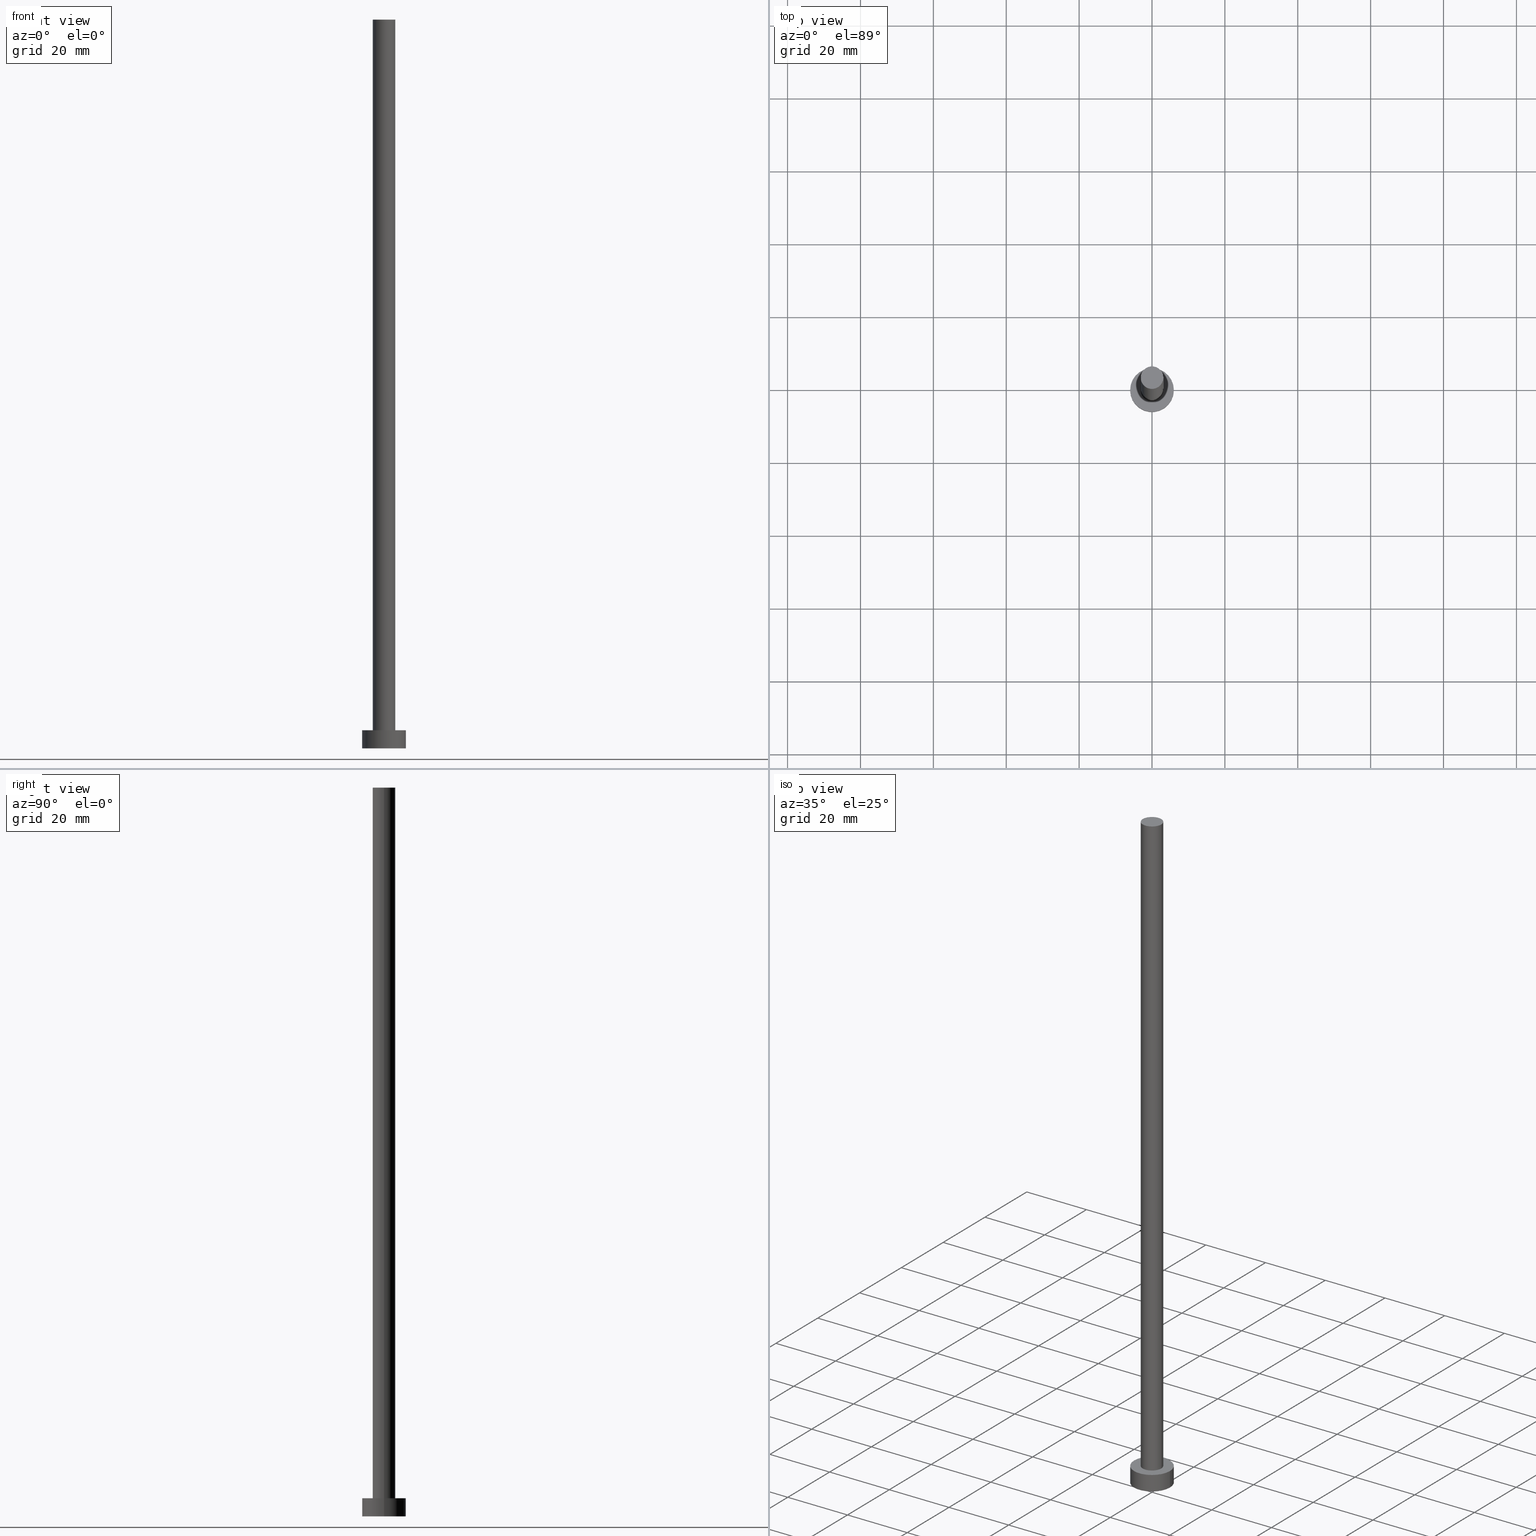
[diagram: canonical four-view strip — front | top / right | iso, engineering-drawing reading convention]
A machine part, canonical four-view strip (front | top / right | iso — engineering-drawing reading convention). The complete STEP part file that produces these views, byte-faithful:
ISO-10303-21;
HEADER;
FILE_DESCRIPTION (( 'STEP AP203' ),
    '1' );
FILE_NAME ('3ea4.STEP',
    '2023-02-13T14:05:38',
    ( '' ),
    ( '' ),
    'SwSTEP 2.0',
    'SolidWorks 2019',
    '' );
FILE_SCHEMA (( 'CONFIG_CONTROL_DESIGN' ));
ENDSEC;

DATA;
#1 = ORIENTED_EDGE ( 'NONE', *, *, #91, .F. ) ;
#2 = EDGE_CURVE ( 'NONE', #82, #164, #57, .T. ) ;
#3 = DIRECTION ( 'NONE',  ( 0.000000000000000000, 0.000000000000000000, 1.000000000000000000 ) ) ;
#4 = DATE_AND_TIME ( #218, #165 ) ;
#5 = EDGE_LOOP ( 'NONE', ( #116, #53, #162, #35 ) ) ;
#6 = VERTEX_POINT ( 'NONE', #38 ) ;
#7 = CC_DESIGN_SECURITY_CLASSIFICATION ( #244, ( #237 ) ) ;
#8 = LINE ( 'NONE', #249, #87 ) ;
#9 = FACE_BOUND ( 'NONE', #75, .T. ) ;
#10 = CARTESIAN_POINT ( 'NONE',  ( 6.000000000000000888, 7.347880794884120722E-16, 5.000000000000000000 ) ) ;
#11 = CC_DESIGN_DATE_AND_TIME_ASSIGNMENT ( #220, #141, ( #195 ) ) ;
#12 = DIRECTION ( 'NONE',  ( 1.000000000000000000, 0.000000000000000000, 0.000000000000000000 ) ) ;
#13 = CIRCLE ( 'NONE', #221, 3.100000000000000089 ) ;
#14 =( NAMED_UNIT ( * ) SI_UNIT ( $, .STERADIAN. ) SOLID_ANGLE_UNIT ( ) );
#15 = UNCERTAINTY_MEASURE_WITH_UNIT (LENGTH_MEASURE( 1.000000000000000082E-05 ), #44, 'distance_accuracy_value', 'NONE');
#16 = EDGE_CURVE ( 'NONE', #40, #217, #168, .T. ) ;
#17 = DIRECTION ( 'NONE',  ( -0.000000000000000000, -0.000000000000000000, -1.000000000000000000 ) ) ;
#18 = FACE_OUTER_BOUND ( 'NONE', #159, .T. ) ;
#19 = DATE_AND_TIME ( #126, #106 ) ;
#20 =( GEOMETRIC_REPRESENTATION_CONTEXT ( 3 ) GLOBAL_UNCERTAINTY_ASSIGNED_CONTEXT ( ( #15 ) ) GLOBAL_UNIT_ASSIGNED_CONTEXT ( ( #44, #130, #14 ) ) REPRESENTATION_CONTEXT ( 'NONE', 'WORKASPACE' ) );
#21 = ORIENTED_EDGE ( 'NONE', *, *, #33, .F. ) ;
#22 = ADVANCED_FACE ( 'NONE', ( #197 ), #124, .T. ) ;
#23 = ORIENTED_EDGE ( 'NONE', *, *, #109, .F. ) ;
#24 = CARTESIAN_POINT ( 'NONE',  ( 0.000000000000000000, 0.000000000000000000, 5.000000000000000000 ) ) ;
#25 = ADVANCED_FACE ( 'NONE', ( #97 ), #199, .T. ) ;
#26 = DIRECTION ( 'NONE',  ( 1.000000000000000000, 0.000000000000000000, -0.000000000000000000 ) ) ;
#27 = ADVANCED_FACE ( 'NONE', ( #18 ), #99, .F. ) ;
#28 = DIRECTION ( 'NONE',  ( -1.000000000000000000, 0.000000000000000000, 0.000000000000000000 ) ) ;
#29 = FACE_OUTER_BOUND ( 'NONE', #37, .T. ) ;
#30 = DIRECTION ( 'NONE',  ( -0.000000000000000000, -0.000000000000000000, -1.000000000000000000 ) ) ;
#31 = CC_DESIGN_PERSON_AND_ORGANIZATION_ASSIGNMENT ( #206, #100, ( #237 ) ) ;
#32 = CARTESIAN_POINT ( 'NONE',  ( 0.000000000000000000, 0.000000000000000000, 0.000000000000000000 ) ) ;
#33 = EDGE_CURVE ( 'NONE', #240, #6, #253, .T. ) ;
#34 = MECHANICAL_CONTEXT ( 'NONE', #60, 'mechanical' ) ;
#35 = ORIENTED_EDGE ( 'NONE', *, *, #2, .F. ) ;
#36 = CC_DESIGN_PERSON_AND_ORGANIZATION_ASSIGNMENT ( #213, #243, ( #195 ) ) ;
#37 = EDGE_LOOP ( 'NONE', ( #42, #222 ) ) ;
#38 = CARTESIAN_POINT ( 'NONE',  ( 6.000000000000000888, 7.347880794884120722E-16, 5.000000000000000000 ) ) ;
#39 = PERSON_AND_ORGANIZATION_ROLE ( 'classification_officer' ) ;
#40 = VERTEX_POINT ( 'NONE', #187 ) ;
#41 = PRODUCT_RELATED_PRODUCT_CATEGORY ( 'detail', '', ( #50 ) ) ;
#42 = ORIENTED_EDGE ( 'NONE', *, *, #33, .T. ) ;
#43 = APPROVAL_DATE_TIME ( #58, #72 ) ;
#44 =( LENGTH_UNIT ( ) NAMED_UNIT ( * ) SI_UNIT ( .MILLI., .METRE. ) );
#45 = CYLINDRICAL_SURFACE ( 'NONE', #158, 3.100000000000000089 ) ;
#46 = DIRECTION ( 'NONE',  ( 1.000000000000000000, 0.000000000000000000, 0.000000000000000000 ) ) ;
#47 = CIRCLE ( 'NONE', #80, 6.000000000000000888 ) ;
#48 = DIRECTION ( 'NONE',  ( 0.000000000000000000, 0.000000000000000000, 1.000000000000000000 ) ) ;
#49 = DIRECTION ( 'NONE',  ( 1.000000000000000000, 0.000000000000000000, -0.000000000000000000 ) ) ;
#50 = PRODUCT ( '3ea4', '3ea4', '', ( #34 ) ) ;
#51 = LOCAL_TIME ( 15, 5, 38.00000000000000000, #174 ) ;
#52 = APPROVAL_STATUS ( 'not_yet_approved' ) ;
#53 = ORIENTED_EDGE ( 'NONE', *, *, #254, .T. ) ;
#54 = COORDINATED_UNIVERSAL_TIME_OFFSET ( 1, 0, .AHEAD. ) ;
#55 = APPROVAL_DATE_TIME ( #183, #190 ) ;
#56 = AXIS2_PLACEMENT_3D ( 'NONE', #184, #3, #78 ) ;
#57 = LINE ( 'NONE', #118, #175 ) ;
#58 = DATE_AND_TIME ( #84, #233 ) ;
#59 = ORIENTED_EDGE ( 'NONE', *, *, #194, .T. ) ;
#60 = APPLICATION_CONTEXT ( 'configuration controlled 3d designs of mechanical parts and assemblies' ) ;
#61 = ORIENTED_EDGE ( 'NONE', *, *, #205, .F. ) ;
#62 = CARTESIAN_POINT ( 'NONE',  ( 0.000000000000000000, 0.000000000000000000, 200.0000000000000000 ) ) ;
#63 = AXIS2_PLACEMENT_3D ( 'NONE', #251, #127, #248 ) ;
#64 = PERSON_AND_ORGANIZATION ( #93, #250 ) ;
#65 = CC_DESIGN_PERSON_AND_ORGANIZATION_ASSIGNMENT ( #64, #39, ( #244 ) ) ;
#66 = CARTESIAN_POINT ( 'NONE',  ( 0.000000000000000000, 0.000000000000000000, 200.0000000000000000 ) ) ;
#67 = DIRECTION ( 'NONE',  ( -1.000000000000000000, 0.000000000000000000, 0.000000000000000000 ) ) ;
#68 = CARTESIAN_POINT ( 'NONE',  ( 0.000000000000000000, 0.000000000000000000, 0.000000000000000000 ) ) ;
#69 = LOCAL_TIME ( 15, 5, 38.00000000000000000, #223 ) ;
#70 = ADVANCED_FACE ( 'NONE', ( #152 ), #103, .T. ) ;
#71 = AXIS2_PLACEMENT_3D ( 'NONE', #66, #125, #151 ) ;
#72 = APPROVAL ( #138, 'NEUR�EN�' ) ;
#73 = CLOSED_SHELL ( 'NONE', ( #170, #25, #70, #133, #27, #149, #22 ) ) ;
#74 = EDGE_LOOP ( 'NONE', ( #61, #21, #255, #224 ) ) ;
#75 = EDGE_LOOP ( 'NONE', ( #137, #1 ) ) ;
#76 = APPROVAL_STATUS ( 'not_yet_approved' ) ;
#77 = APPROVAL_PERSON_ORGANIZATION ( #144, #72, #200 ) ;
#78 = DIRECTION ( 'NONE',  ( 1.000000000000000000, 0.000000000000000000, -0.000000000000000000 ) ) ;
#79 = APPROVAL_DATE_TIME ( #4, #155 ) ;
#80 = AXIS2_PLACEMENT_3D ( 'NONE', #211, #83, #12 ) ;
#81 = EDGE_LOOP ( 'NONE', ( #119, #163, #161, #23 ) ) ;
#82 = VERTEX_POINT ( 'NONE', #246 ) ;
#83 = DIRECTION ( 'NONE',  ( 0.000000000000000000, 0.000000000000000000, 1.000000000000000000 ) ) ;
#84 = CALENDAR_DATE ( 2023, 13, 2 ) ;
#85 = CC_DESIGN_PERSON_AND_ORGANIZATION_ASSIGNMENT ( #115, #236, ( #50 ) ) ;
#86 = PLANE ( 'NONE',  #153 ) ;
#87 = VECTOR ( 'NONE', #228, 1000.000000000000000 ) ;
#88 = CYLINDRICAL_SURFACE ( 'NONE', #121, 3.100000000000000089 ) ;
#89 = AXIS2_PLACEMENT_3D ( 'NONE', #32, #232, #231 ) ;
#90 = DIRECTION ( 'NONE',  ( -0.000000000000000000, -0.000000000000000000, -1.000000000000000000 ) ) ;
#91 = EDGE_CURVE ( 'NONE', #216, #164, #145, .T. ) ;
#92 = LINE ( 'NONE', #226, #95 ) ;
#93 = PERSON ( 'NEUR�EN�', 'NEUR�EN�', 'NEUR�EN�', ('NEUR�EN�'), ('NEUR�EN�'), ('NEUR�EN�') ) ;
#94 = EDGE_CURVE ( 'NONE', #101, #82, #131, .T. ) ;
#95 = VECTOR ( 'NONE', #128, 1000.000000000000000 ) ;
#96 = EDGE_LOOP ( 'NONE', ( #186, #202, #143, #59 ) ) ;
#97 = FACE_OUTER_BOUND ( 'NONE', #81, .T. ) ;
#98 = CALENDAR_DATE ( 2023, 13, 2 ) ;
#99 = PLANE ( 'NONE',  #56 ) ;
#100 = PERSON_AND_ORGANIZATION_ROLE ( 'creator' ) ;
#101 = VERTEX_POINT ( 'NONE', #129 ) ;
#102 = DIRECTION ( 'NONE',  ( 1.000000000000000000, 0.000000000000000000, 0.000000000000000000 ) ) ;
#103 = CYLINDRICAL_SURFACE ( 'NONE', #210, 6.000000000000000888 ) ;
#104 = CC_DESIGN_PERSON_AND_ORGANIZATION_ASSIGNMENT ( #188, #167, ( #237 ) ) ;
#105 = CALENDAR_DATE ( 2023, 13, 2 ) ;
#106 = LOCAL_TIME ( 15, 5, 38.00000000000000000, #147 ) ;
#107 = DIRECTION ( 'NONE',  ( 0.000000000000000000, 0.000000000000000000, 1.000000000000000000 ) ) ;
#108 = DIRECTION ( 'NONE',  ( 0.000000000000000000, 0.000000000000000000, 1.000000000000000000 ) ) ;
#109 = EDGE_CURVE ( 'NONE', #240, #40, #8, .T. ) ;
#110 = CARTESIAN_POINT ( 'NONE',  ( -6.000000000000000888, 0.000000000000000000, 5.000000000000000000 ) ) ;
#111 = VECTOR ( 'NONE', #113, 1000.000000000000000 ) ;
#112 = APPROVAL_PERSON_ORGANIZATION ( #214, #190, #136 ) ;
#113 = DIRECTION ( 'NONE',  ( -0.000000000000000000, -0.000000000000000000, -1.000000000000000000 ) ) ;
#114 = AXIS2_PLACEMENT_3D ( 'NONE', #204, #235, #49 ) ;
#115 = PERSON_AND_ORGANIZATION ( #93, #250 ) ;
#116 = ORIENTED_EDGE ( 'NONE', *, *, #94, .F. ) ;
#117 = APPLICATION_PROTOCOL_DEFINITION ( 'international standard', 'config_control_design', 1994, #60 ) ;
#118 = CARTESIAN_POINT ( 'NONE',  ( -3.100000000000000089, 0.000000000000000000, 200.0000000000000000 ) ) ;
#119 = ORIENTED_EDGE ( 'NONE', *, *, #123, .F. ) ;
#120 = SHAPE_DEFINITION_REPRESENTATION ( #215, #203 ) ;
#121 = AXIS2_PLACEMENT_3D ( 'NONE', #169, #30, #173 ) ;
#122 = ORIENTED_EDGE ( 'NONE', *, *, #160, .T. ) ;
#123 = EDGE_CURVE ( 'NONE', #6, #240, #47, .T. ) ;
#124 = PLANE ( 'NONE',  #114 ) ;
#125 = DIRECTION ( 'NONE',  ( 0.000000000000000000, 0.000000000000000000, 1.000000000000000000 ) ) ;
#126 = CALENDAR_DATE ( 2023, 13, 2 ) ;
#127 = DIRECTION ( 'NONE',  ( 0.000000000000000000, 0.000000000000000000, 1.000000000000000000 ) ) ;
#128 = DIRECTION ( 'NONE',  ( -0.000000000000000000, -0.000000000000000000, -1.000000000000000000 ) ) ;
#129 = CARTESIAN_POINT ( 'NONE',  ( 3.100000000000000089, 3.796405077356794918E-16, 200.0000000000000000 ) ) ;
#130 =( NAMED_UNIT ( * ) PLANE_ANGLE_UNIT ( ) SI_UNIT ( $, .RADIAN. ) );
#131 = CIRCLE ( 'NONE', #63, 3.100000000000000089 ) ;
#132 = APPLICATION_CONTEXT ( 'configuration controlled 3d designs of mechanical parts and assemblies' ) ;
#133 = ADVANCED_FACE ( 'NONE', ( #9, #29 ), #86, .T. ) ;
#134 = CARTESIAN_POINT ( 'NONE',  ( 0.000000000000000000, 0.000000000000000000, 5.000000000000000000 ) ) ;
#135 = CC_DESIGN_APPROVAL ( #72, ( #237 ) ) ;
#136 = APPROVAL_ROLE ( '' ) ;
#137 = ORIENTED_EDGE ( 'NONE', *, *, #194, .F. ) ;
#138 = APPROVAL_STATUS ( 'not_yet_approved' ) ;
#139 = AXIS2_PLACEMENT_3D ( 'NONE', #154, #48, #191 ) ;
#140 = ORIENTED_EDGE ( 'NONE', *, *, #234, .F. ) ;
#141 = DATE_TIME_ROLE ( 'creation_date' ) ;
#142 = AXIS2_PLACEMENT_3D ( 'NONE', #68, #166, #46 ) ;
#143 = ORIENTED_EDGE ( 'NONE', *, *, #2, .T. ) ;
#144 = PERSON_AND_ORGANIZATION ( #93, #250 ) ;
#145 = CIRCLE ( 'NONE', #180, 3.100000000000000089 ) ;
#146 = FACE_OUTER_BOUND ( 'NONE', #96, .T. ) ;
#147 = COORDINATED_UNIVERSAL_TIME_OFFSET ( 1, 0, .AHEAD. ) ;
#148 = CARTESIAN_POINT ( 'NONE',  ( 0.000000000000000000, 0.000000000000000000, 5.000000000000000000 ) ) ;
#149 = ADVANCED_FACE ( 'NONE', ( #146 ), #88, .T. ) ;
#150 = CC_DESIGN_APPROVAL ( #155, ( #244 ) ) ;
#151 = DIRECTION ( 'NONE',  ( 1.000000000000000000, 0.000000000000000000, 0.000000000000000000 ) ) ;
#152 = FACE_OUTER_BOUND ( 'NONE', #74, .T. ) ;
#153 = AXIS2_PLACEMENT_3D ( 'NONE', #148, #227, #26 ) ;
#154 = CARTESIAN_POINT ( 'NONE',  ( 0.000000000000000000, 0.000000000000000000, 5.000000000000000000 ) ) ;
#155 = APPROVAL ( #76, 'NEUR�EN�' ) ;
#156 = APPROVAL_PERSON_ORGANIZATION ( #185, #155, #239 ) ;
#157 = MANIFOLD_SOLID_BREP ( 'P�idat vysunut�m3', #73 ) ;
#158 = AXIS2_PLACEMENT_3D ( 'NONE', #62, #209, #28 ) ;
#159 = EDGE_LOOP ( 'NONE', ( #238, #140 ) ) ;
#160 = EDGE_CURVE ( 'NONE', #82, #101, #177, .T. ) ;
#161 = ORIENTED_EDGE ( 'NONE', *, *, #234, .T. ) ;
#162 = ORIENTED_EDGE ( 'NONE', *, *, #91, .T. ) ;
#163 = ORIENTED_EDGE ( 'NONE', *, *, #205, .T. ) ;
#164 = VERTEX_POINT ( 'NONE', #193 ) ;
#165 = LOCAL_TIME ( 15, 5, 38.00000000000000000, #54 ) ;
#166 = DIRECTION ( 'NONE',  ( 0.000000000000000000, 0.000000000000000000, 1.000000000000000000 ) ) ;
#167 = PERSON_AND_ORGANIZATION_ROLE ( 'design_supplier' ) ;
#168 = CIRCLE ( 'NONE', #225, 6.000000000000000888 ) ;
#169 = CARTESIAN_POINT ( 'NONE',  ( 0.000000000000000000, 0.000000000000000000, 200.0000000000000000 ) ) ;
#170 = ADVANCED_FACE ( 'NONE', ( #230 ), #45, .T. ) ;
#171 = CARTESIAN_POINT ( 'NONE',  ( 3.100000000000000089, 3.796405077356794918E-16, 5.000000000000000000 ) ) ;
#172 = LINE ( 'NONE', #10, #111 ) ;
#173 = DIRECTION ( 'NONE',  ( -1.000000000000000000, 0.000000000000000000, 0.000000000000000000 ) ) ;
#174 = COORDINATED_UNIVERSAL_TIME_OFFSET ( 1, 0, .AHEAD. ) ;
#175 = VECTOR ( 'NONE', #219, 1000.000000000000000 ) ;
#176 = CC_DESIGN_DATE_AND_TIME_ASSIGNMENT ( #19, #182, ( #244 ) ) ;
#177 = CIRCLE ( 'NONE', #71, 3.100000000000000089 ) ;
#178 = DESIGN_CONTEXT ( 'detailed design', #132, 'design' ) ;
#179 = DIRECTION ( 'NONE',  ( 0.000000000000000000, 0.000000000000000000, 1.000000000000000000 ) ) ;
#180 = AXIS2_PLACEMENT_3D ( 'NONE', #24, #107, #189 ) ;
#181 = DIRECTION ( 'NONE',  ( -1.000000000000000000, 0.000000000000000000, 0.000000000000000000 ) ) ;
#182 = DATE_TIME_ROLE ( 'classification_date' ) ;
#183 = DATE_AND_TIME ( #98, #51 ) ;
#184 = CARTESIAN_POINT ( 'NONE',  ( 0.000000000000000000, 0.000000000000000000, 0.000000000000000000 ) ) ;
#185 = PERSON_AND_ORGANIZATION ( #93, #250 ) ;
#186 = ORIENTED_EDGE ( 'NONE', *, *, #254, .F. ) ;
#187 = CARTESIAN_POINT ( 'NONE',  ( -6.000000000000000888, 0.000000000000000000, 0.000000000000000000 ) ) ;
#188 = PERSON_AND_ORGANIZATION ( #93, #250 ) ;
#189 = DIRECTION ( 'NONE',  ( 1.000000000000000000, 0.000000000000000000, 0.000000000000000000 ) ) ;
#190 = APPROVAL ( #52, 'NEUR�EN�' ) ;
#191 = DIRECTION ( 'NONE',  ( 1.000000000000000000, 0.000000000000000000, 0.000000000000000000 ) ) ;
#192 = CARTESIAN_POINT ( 'NONE',  ( 0.000000000000000000, 0.000000000000000000, 5.000000000000000000 ) ) ;
#193 = CARTESIAN_POINT ( 'NONE',  ( -3.100000000000000089, 0.000000000000000000, 5.000000000000000000 ) ) ;
#194 = EDGE_CURVE ( 'NONE', #164, #216, #13, .T. ) ;
#195 = PRODUCT_DEFINITION ( 'NEZN�M�', '', #237, #178 ) ;
#196 = AXIS2_PLACEMENT_3D ( 'NONE', #134, #17, #181 ) ;
#197 = FACE_OUTER_BOUND ( 'NONE', #245, .T. ) ;
#198 = APPLICATION_PROTOCOL_DEFINITION ( 'international standard', 'config_control_design', 1994, #132 ) ;
#199 = CYLINDRICAL_SURFACE ( 'NONE', #196, 6.000000000000000888 ) ;
#200 = APPROVAL_ROLE ( '' ) ;
#201 = ORIENTED_EDGE ( 'NONE', *, *, #94, .T. ) ;
#202 = ORIENTED_EDGE ( 'NONE', *, *, #160, .F. ) ;
#203 = ADVANCED_BREP_SHAPE_REPRESENTATION ( '3ea4', ( #157, #89 ), #20 ) ;
#204 = CARTESIAN_POINT ( 'NONE',  ( 0.000000000000000000, 0.000000000000000000, 200.0000000000000000 ) ) ;
#205 = EDGE_CURVE ( 'NONE', #6, #217, #172, .T. ) ;
#206 = PERSON_AND_ORGANIZATION ( #93, #250 ) ;
#207 = CARTESIAN_POINT ( 'NONE',  ( 6.000000000000000888, 7.347880794884120722E-16, 0.000000000000000000 ) ) ;
#208 = CC_DESIGN_APPROVAL ( #190, ( #195 ) ) ;
#209 = DIRECTION ( 'NONE',  ( -0.000000000000000000, -0.000000000000000000, -1.000000000000000000 ) ) ;
#210 = AXIS2_PLACEMENT_3D ( 'NONE', #192, #90, #67 ) ;
#211 = CARTESIAN_POINT ( 'NONE',  ( 0.000000000000000000, 0.000000000000000000, 5.000000000000000000 ) ) ;
#212 = CIRCLE ( 'NONE', #142, 6.000000000000000888 ) ;
#213 = PERSON_AND_ORGANIZATION ( #93, #250 ) ;
#214 = PERSON_AND_ORGANIZATION ( #93, #250 ) ;
#215 = PRODUCT_DEFINITION_SHAPE ( 'NONE', 'NONE',  #195 ) ;
#216 = VERTEX_POINT ( 'NONE', #171 ) ;
#217 = VERTEX_POINT ( 'NONE', #207 ) ;
#218 = CALENDAR_DATE ( 2023, 13, 2 ) ;
#219 = DIRECTION ( 'NONE',  ( -0.000000000000000000, -0.000000000000000000, -1.000000000000000000 ) ) ;
#220 = DATE_AND_TIME ( #105, #69 ) ;
#221 = AXIS2_PLACEMENT_3D ( 'NONE', #252, #108, #229 ) ;
#222 = ORIENTED_EDGE ( 'NONE', *, *, #123, .T. ) ;
#223 = COORDINATED_UNIVERSAL_TIME_OFFSET ( 1, 0, .AHEAD. ) ;
#224 = ORIENTED_EDGE ( 'NONE', *, *, #16, .T. ) ;
#225 = AXIS2_PLACEMENT_3D ( 'NONE', #242, #179, #102 ) ;
#226 = CARTESIAN_POINT ( 'NONE',  ( 3.100000000000000089, 3.796405077356794918E-16, 200.0000000000000000 ) ) ;
#227 = DIRECTION ( 'NONE',  ( 0.000000000000000000, 0.000000000000000000, 1.000000000000000000 ) ) ;
#228 = DIRECTION ( 'NONE',  ( -0.000000000000000000, -0.000000000000000000, -1.000000000000000000 ) ) ;
#229 = DIRECTION ( 'NONE',  ( 1.000000000000000000, 0.000000000000000000, 0.000000000000000000 ) ) ;
#230 = FACE_OUTER_BOUND ( 'NONE', #5, .T. ) ;
#231 = DIRECTION ( 'NONE',  ( 1.000000000000000000, 0.000000000000000000, 0.000000000000000000 ) ) ;
#232 = DIRECTION ( 'NONE',  ( 0.000000000000000000, 0.000000000000000000, 1.000000000000000000 ) ) ;
#233 = LOCAL_TIME ( 15, 5, 38.00000000000000000, #241 ) ;
#234 = EDGE_CURVE ( 'NONE', #217, #40, #212, .T. ) ;
#235 = DIRECTION ( 'NONE',  ( 0.000000000000000000, 0.000000000000000000, 1.000000000000000000 ) ) ;
#236 = PERSON_AND_ORGANIZATION_ROLE ( 'design_owner' ) ;
#237 = PRODUCT_DEFINITION_FORMATION_WITH_SPECIFIED_SOURCE ( 'LIBOVOLN�', '', #50, .NOT_KNOWN. ) ;
#238 = ORIENTED_EDGE ( 'NONE', *, *, #16, .F. ) ;
#239 = APPROVAL_ROLE ( '' ) ;
#240 = VERTEX_POINT ( 'NONE', #110 ) ;
#241 = COORDINATED_UNIVERSAL_TIME_OFFSET ( 1, 0, .AHEAD. ) ;
#242 = CARTESIAN_POINT ( 'NONE',  ( 0.000000000000000000, 0.000000000000000000, 0.000000000000000000 ) ) ;
#243 = PERSON_AND_ORGANIZATION_ROLE ( 'creator' ) ;
#244 = SECURITY_CLASSIFICATION ( '', '', #247 ) ;
#245 = EDGE_LOOP ( 'NONE', ( #122, #201 ) ) ;
#246 = CARTESIAN_POINT ( 'NONE',  ( -3.100000000000000089, 0.000000000000000000, 200.0000000000000000 ) ) ;
#247 = SECURITY_CLASSIFICATION_LEVEL ( 'unclassified' ) ;
#248 = DIRECTION ( 'NONE',  ( 1.000000000000000000, 0.000000000000000000, 0.000000000000000000 ) ) ;
#249 = CARTESIAN_POINT ( 'NONE',  ( -6.000000000000000888, 0.000000000000000000, 5.000000000000000000 ) ) ;
#250 = ORGANIZATION ( 'NEUR�EN�', 'NEUR�EN�', '' ) ;
#251 = CARTESIAN_POINT ( 'NONE',  ( 0.000000000000000000, 0.000000000000000000, 200.0000000000000000 ) ) ;
#252 = CARTESIAN_POINT ( 'NONE',  ( 0.000000000000000000, 0.000000000000000000, 5.000000000000000000 ) ) ;
#253 = CIRCLE ( 'NONE', #139, 6.000000000000000888 ) ;
#254 = EDGE_CURVE ( 'NONE', #101, #216, #92, .T. ) ;
#255 = ORIENTED_EDGE ( 'NONE', *, *, #109, .T. ) ;
ENDSEC;
END-ISO-10303-21;
